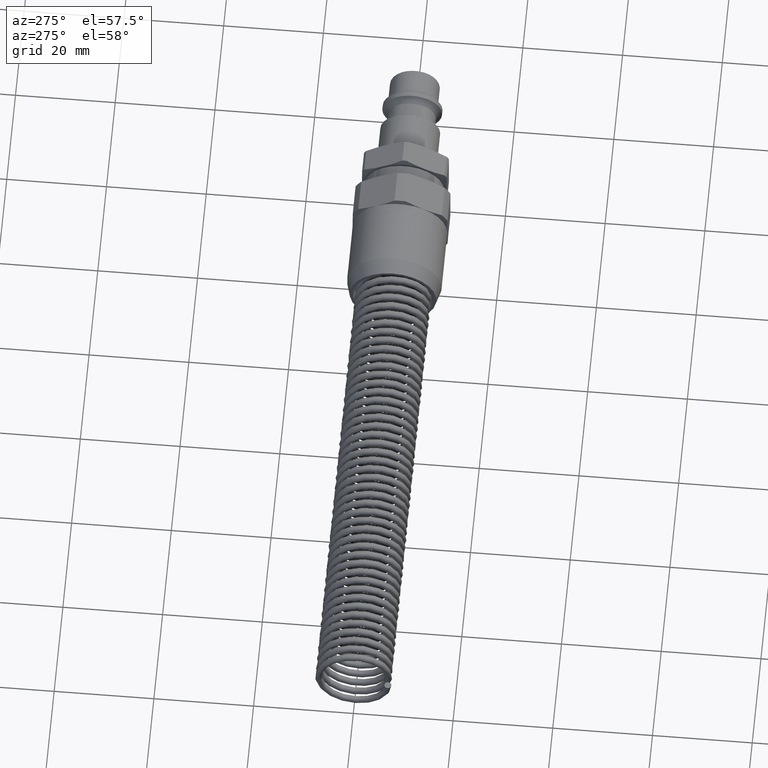
[diagram: clean part render]
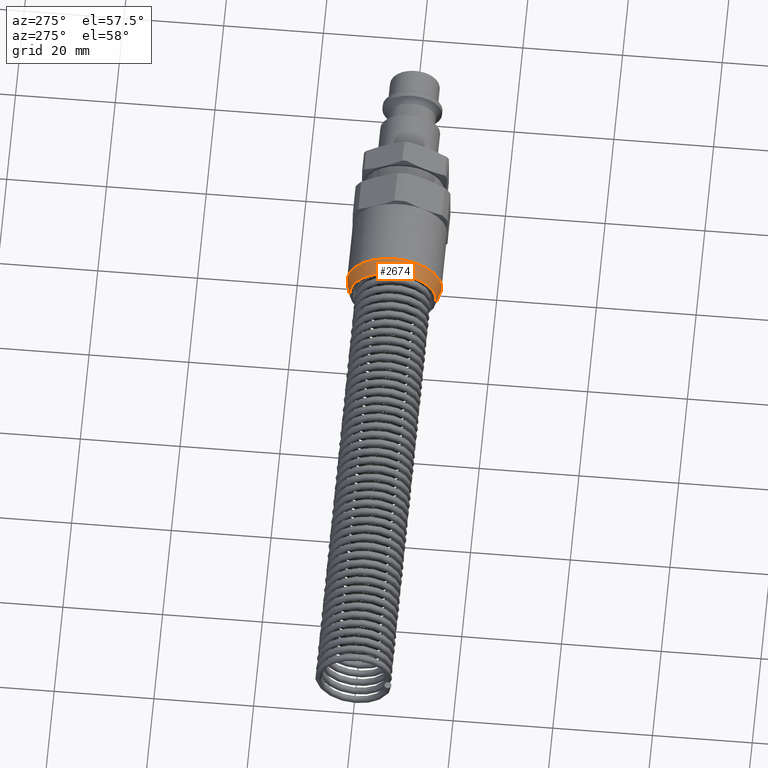
[diagram: same view with one face highlighted and labeled with its STEP entity id]
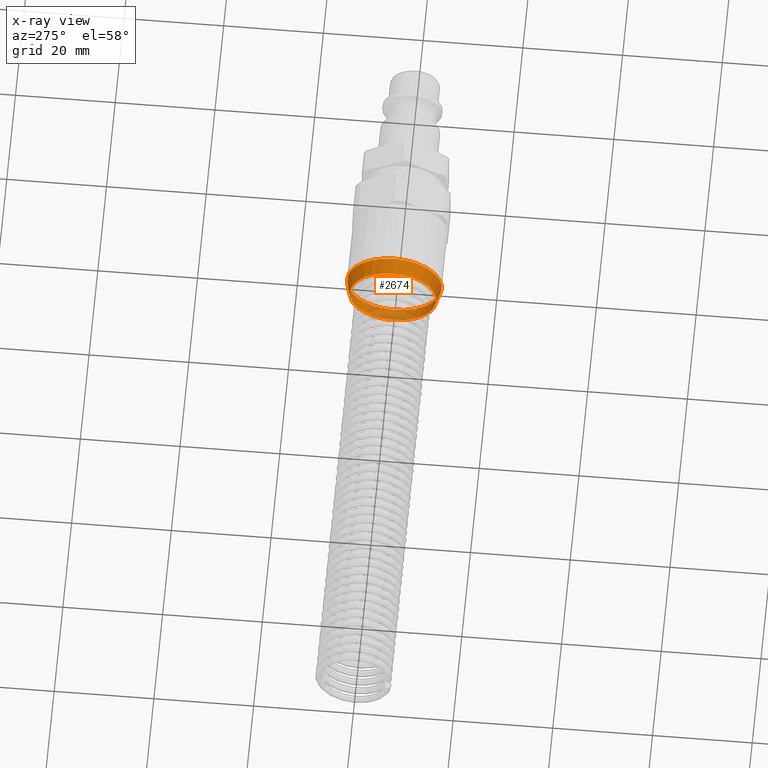
[diagram: x-ray of the same camera — body ghosted, the highlighted face saturated]
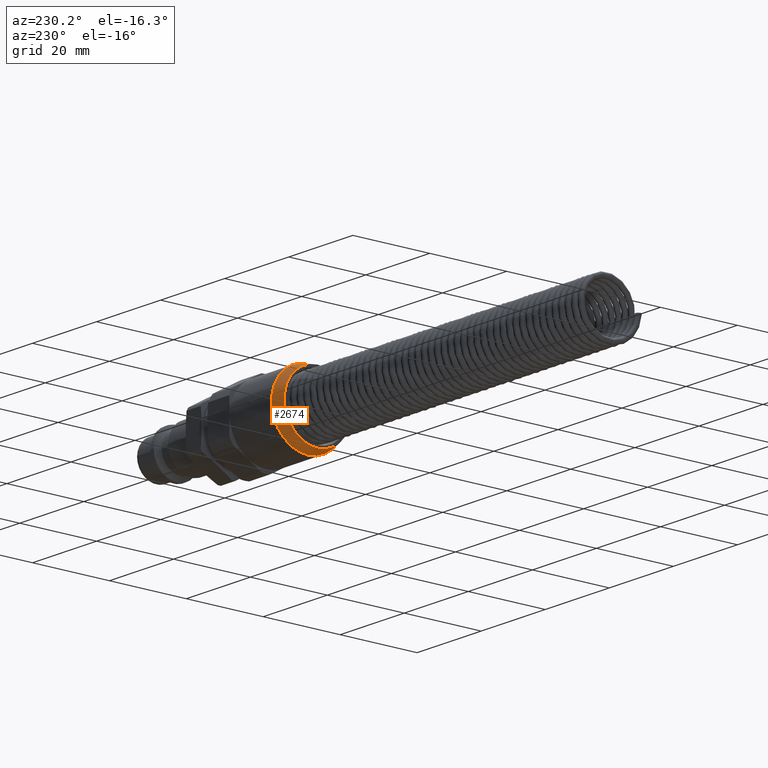
[diagram: same view with one face highlighted and labeled with its STEP entity id]
A machine part, auxiliary view. The second image highlights one B-rep face of the part: STEP entity #2674.
The next image is the same camera in x-ray: the body ghosted, the highlighted face saturated — about 18% of this face is hidden behind the body in this view.
A second angle (auxiliary view) of the same face is appended — the face is thin or edge-on in the first view.
In plain terms, the highlighted conical surface has half-angle 15 deg.
Its self-contained STEP definition (entity closure, byte-faithful):
#2640=CARTESIAN_POINT('',(0.0,8.696152422706632,0.0));
#2641=VERTEX_POINT('',#2640);
#2642=CARTESIAN_POINT('',(0.0,0.0,0.0));
#2643=DIRECTION('',(1.0,0.0,0.0));
#2644=DIRECTION('',(0.0,1.0,0.0));
#2645=AXIS2_PLACEMENT_3D('',#2642,#2643,#2644);
#2646=CIRCLE('',#2645,8.696152422706632);
#2647=EDGE_CURVE('',#2641,#2641,#2646,.T.);
#2655=CARTESIAN_POINT('',(1.499999999999999,0.0,0.0));
#2656=DIRECTION('',(1.0,0.0,0.0));
#2657=DIRECTION('',(0.0,1.0,0.0));
#2658=AXIS2_PLACEMENT_3D('',#2655,#2656,#2657);
#2659=CONICAL_SURFACE('',#2658,9.098076211353316,15.000000000000025);
#2660=CARTESIAN_POINT('',(3.000000000000000,9.500000000000000,0.0));
#2661=VERTEX_POINT('',#2660);
#2662=CARTESIAN_POINT('',(3.000000000000003,0.0,0.0));
#2663=DIRECTION('',(1.0,0.0,0.0));
#2664=DIRECTION('',(0.0,1.0,0.0));
#2665=AXIS2_PLACEMENT_3D('',#2662,#2663,#2664);
#2666=CIRCLE('',#2665,9.500000000000000);
#2667=EDGE_CURVE('',#2661,#2661,#2666,.T.);
#2668=ORIENTED_EDGE('',*,*,#2667,.F.);
#2669=EDGE_LOOP('',(#2668));
#2670=FACE_OUTER_BOUND('',#2669,.T.);
#2671=ORIENTED_EDGE('',*,*,#2647,.T.);
#2672=EDGE_LOOP('',(#2671));
#2673=FACE_BOUND('',#2672,.T.);
#2674=ADVANCED_FACE('',(#2670,#2673),#2659,.T.);